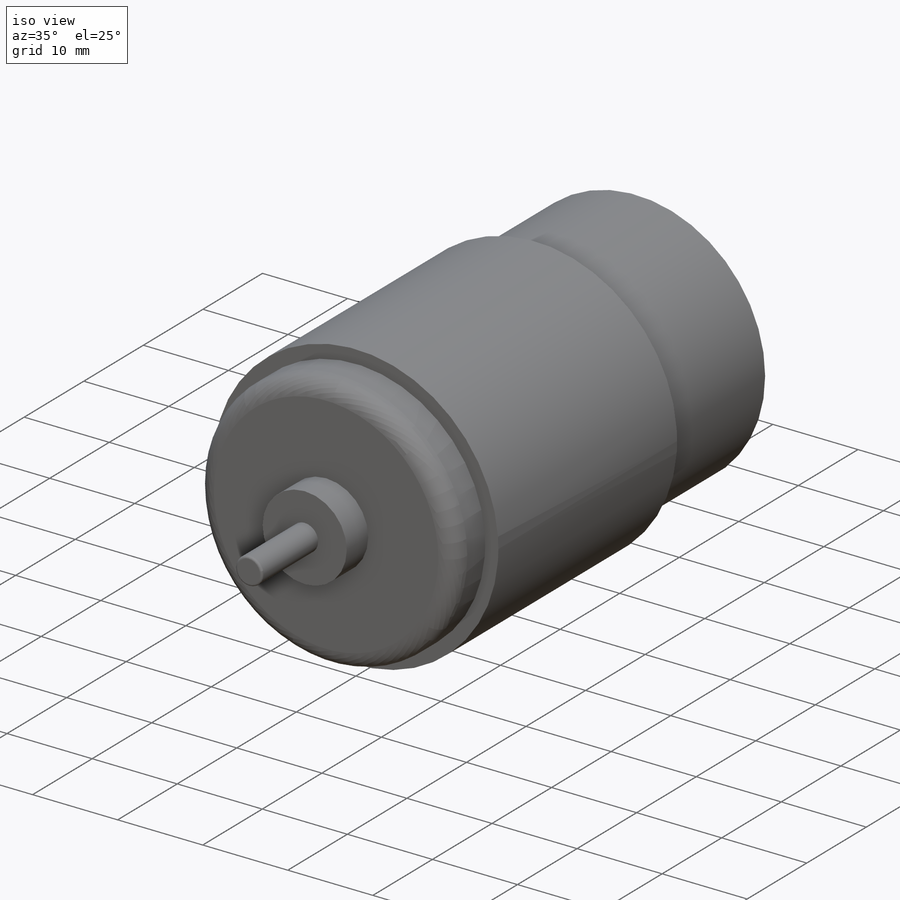
[diagram: iso view]
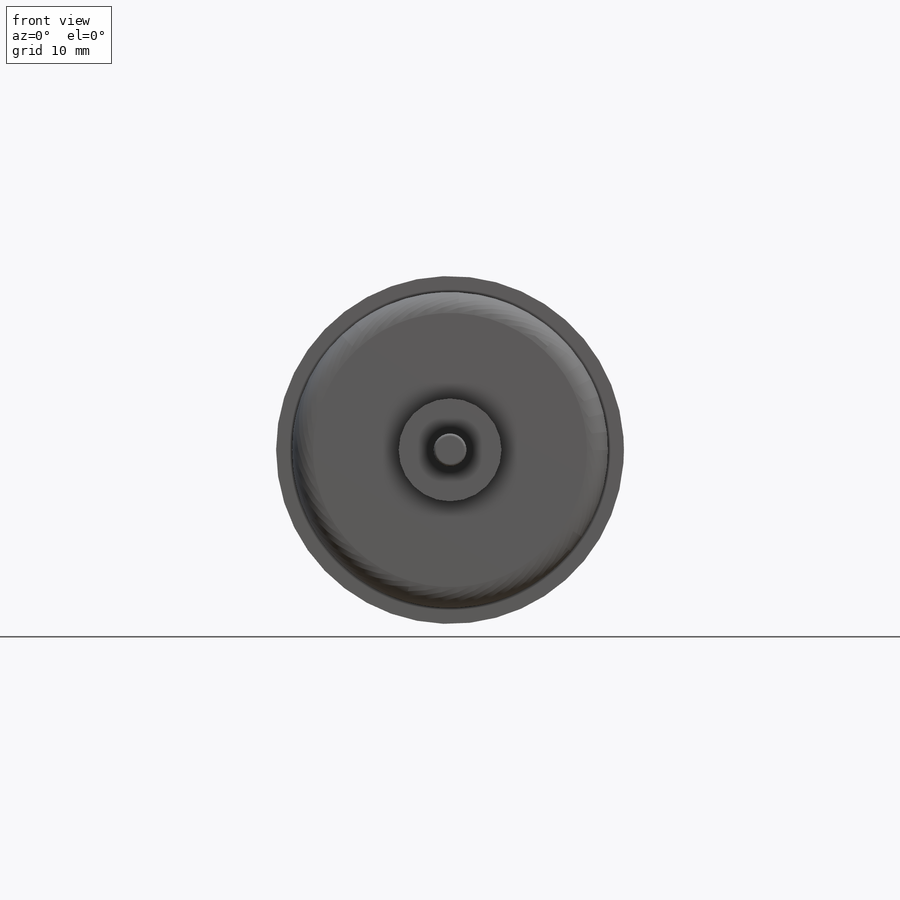
[diagram: front view]
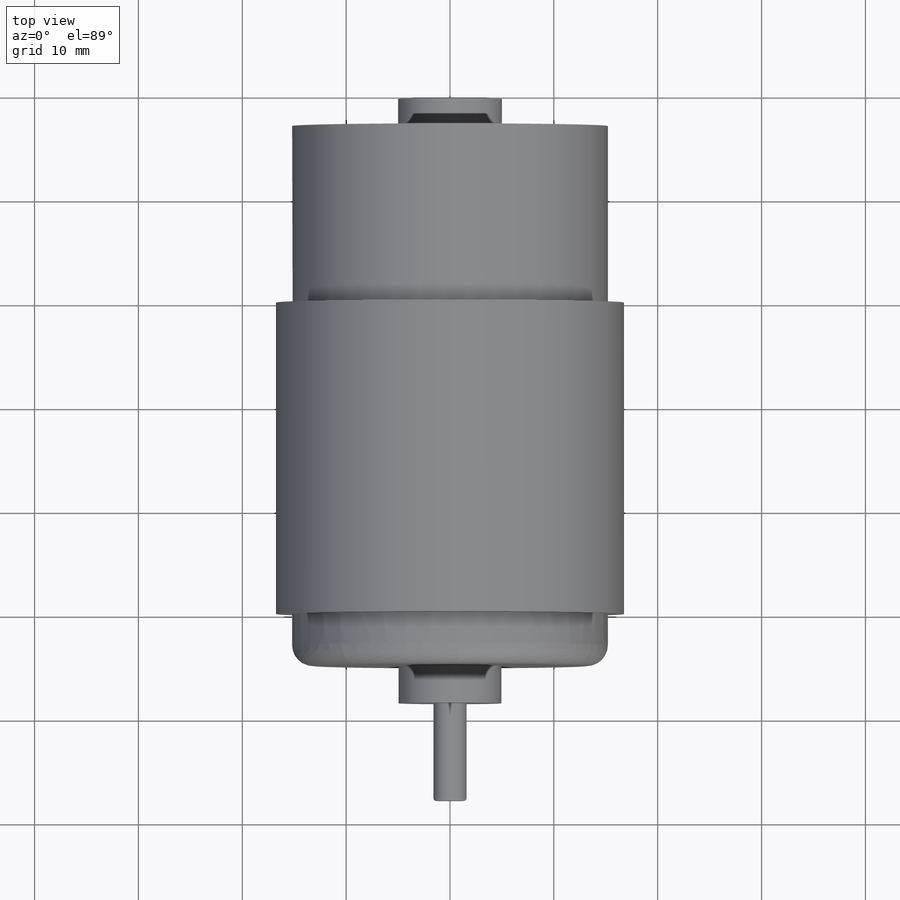
[diagram: top view]
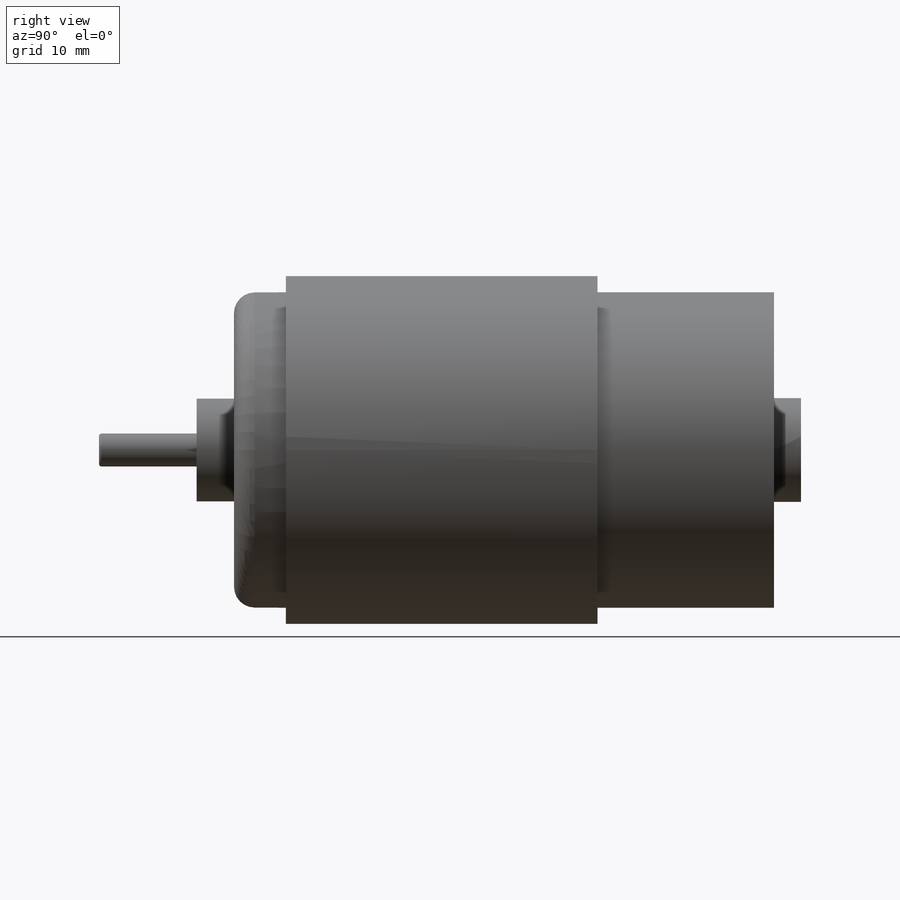
[diagram: right view]
SOLIDWORKS PART (.sldprt)
format: sldprt  version: not decoded by parser v0  size: 230,400 bytes
history: native  units: mm
features: sketch x6, extrude x6, fillet x2, material x1 (+13 scaffold rows collapsed)
feature tree (28):
  scaffold x13  (default folders/planes/origin — collapsed)
  material  "Material <not specified>"
  sketch  "Sketch1"  dims[D1=33.5mm]
  extrude  "Boss-Extrude1"  Depth=30mm
  sketch  "Sketch2"  dims[D1=30.4mm]
  extrude  "Boss-Extrude2"  Depth=5mm
  fillet  "Fillet1"  Radius=2mm
  sketch  "Sketch3"  dims[D1=30.4mm]
  extrude  "Boss-Extrude3"  Depth=17mm
  sketch  "Sketch4"  dims[D1=9.9mm]
  extrude  "Boss-Extrude4"  Depth=3.6mm
  sketch  "Sketch5"  dims[D1=10.0mm]
  extrude  "Boss-Extrude5"  Depth=2.6mm
  sketch  "Sketch6"  dims[D1=3.17mm]
  extrude  "Boss-Extrude6"  Depth=9.4mm
  fillet  "Fillet2"  Radius=0.254mm
decode coverage: 14 of 14 modeling features carry decoded parameters
note: suppression state not decoded; provenance and decode notes live in map.json
